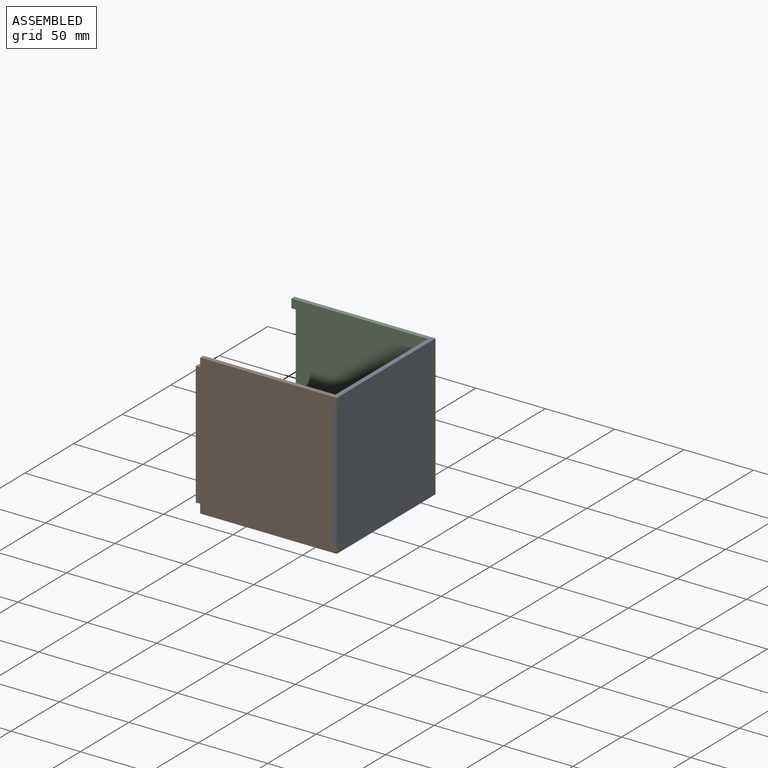
[diagram: assembled view]
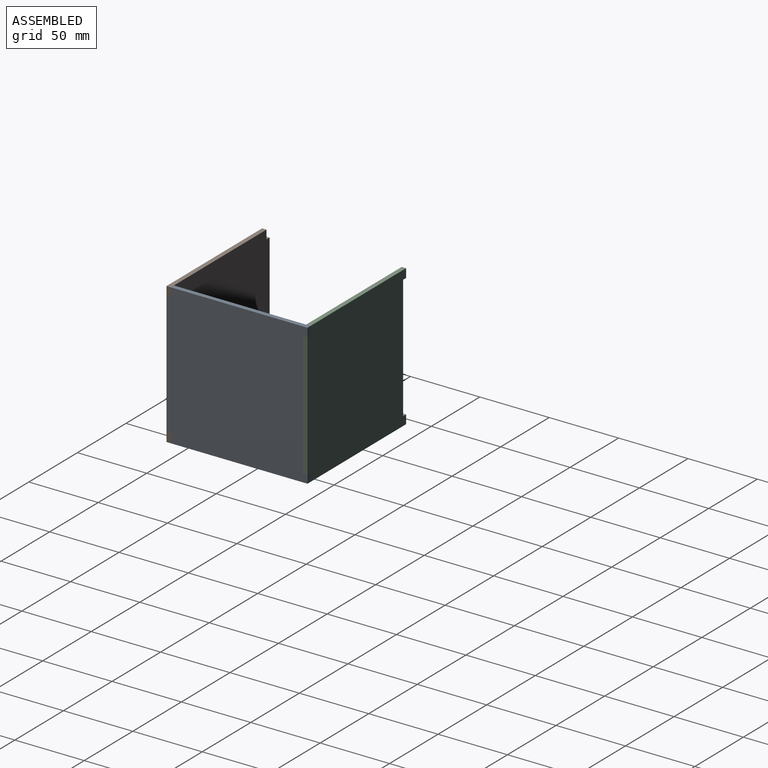
[diagram: assembled view, second angle]
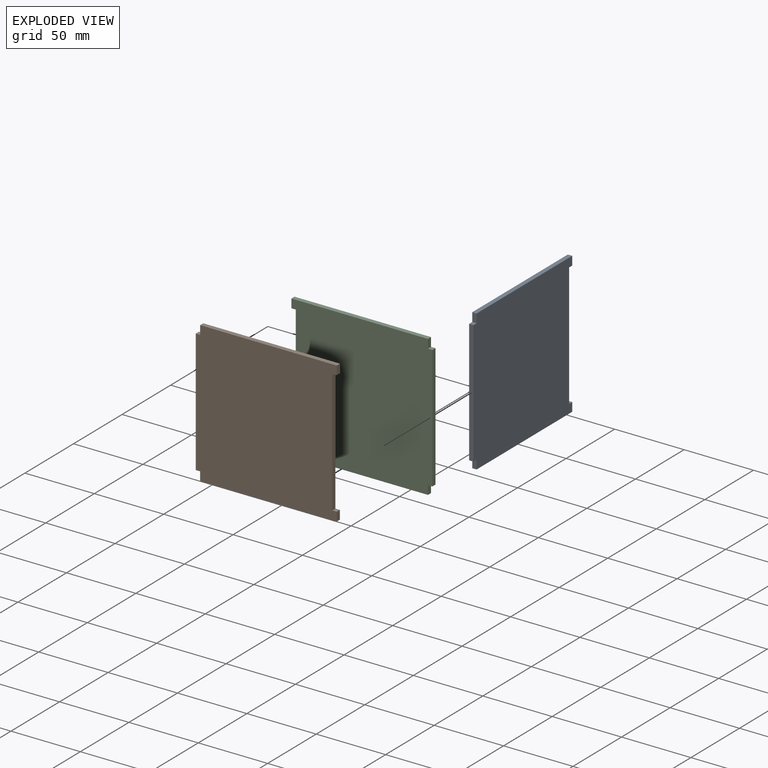
[diagram: exploded view]
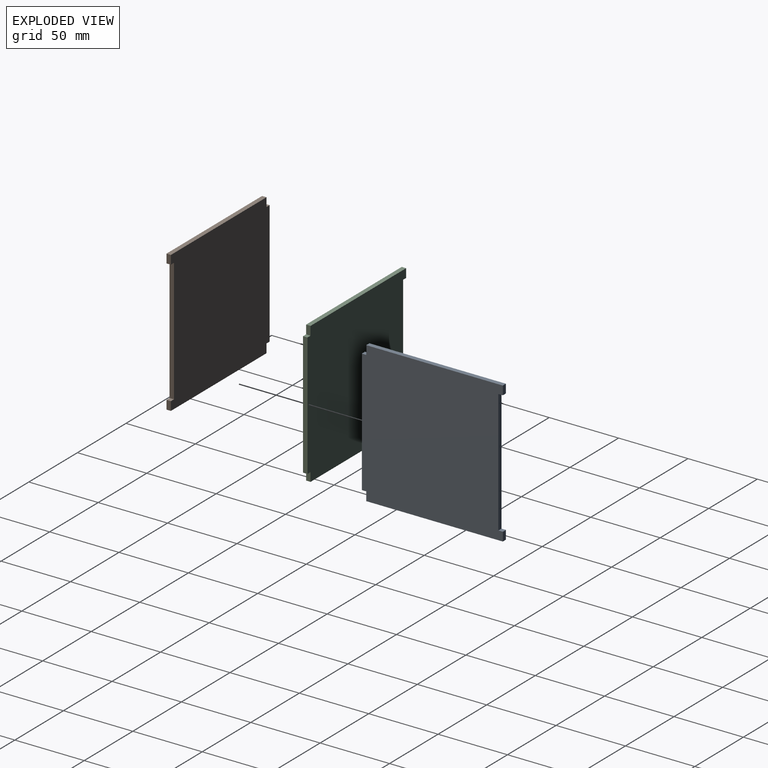
[diagram: exploded view, second angle]
ASSEMBLY  parts=3 mates=2
PART A: 14 faces, bbox 101.6x3.2x101.6 mm
  f0: plane 88.9x3.18mm, normal (1,0,0), area 282.3mm2, adj f4,f5,f8,f10
  f1: plane 98.43x3.18mm, normal (0,0,1), area 312.5mm2, adj f2,f4,f5,f9
  f2: plane 6.35x3.18mm, normal (-1,0,0), area 20.2mm2, adj f1,f4,f5,f13
  f3: plane 98.43x3.18mm, normal (0,0,-1), area 312.5mm2, adj f4,f5,f6,f7
  f4: plane 101.6x101.6mm, normal (0,-1,0), area 10000mm2, adj f0,f1,f2,f3,f6,f7,f8,f9
  f5: plane 101.6x101.6mm, normal (0,1,0), area 10000mm2, adj f0,f1,f2,f3,f6,f7,f8,f9
  f6: plane 6.35x3.18mm, normal (-1,0,0), area 20.2mm2, adj f3,f4,f5,f11
  f7: plane 6.35x3.18mm, normal (1,0,0), area 20.2mm2, adj f3,f4,f5,f8
  f8: plane 3.18x3.18mm, normal (0,0,-1), area 10.1mm2, adj f0,f4,f5,f7
  f9: plane 6.35x3.18mm, normal (1,0,0), area 20.2mm2, adj f1,f4,f5,f10
  f10: plane 3.18x3.18mm, normal (0,0,1), area 10.1mm2, adj f0,f4,f5,f9
  f11: plane 3.18x3.18mm, normal (0,0,1), area 10.1mm2, adj f4,f5,f6,f12
  f12: plane 88.9x3.18mm, normal (-1,0,0), area 282.3mm2, adj f4,f5,f11,f13
  f13: plane 3.18x3.18mm, normal (0,0,-1), area 10.1mm2, adj f2,f4,f5,f12
PART B: same geometry as A
PART C: same geometry as A
PLACE A rot(axis=(0,0,-1),90deg) t=(50.87,20.67,-33.12)mm
PLACE B rot(axis=(0,0,1),180deg) t=(0.07,-30.13,-33.12)mm
PLACE C t=(0.07,71.47,-33.12)mm
MATE planar B.f11 <-> A.f8  axis (0,0,1) through (49.28,-28.54,-77.57)mm
MATE planar C.f10 <-> A.f13  axis (0,0,1) through (49.28,69.88,11.33)mm
